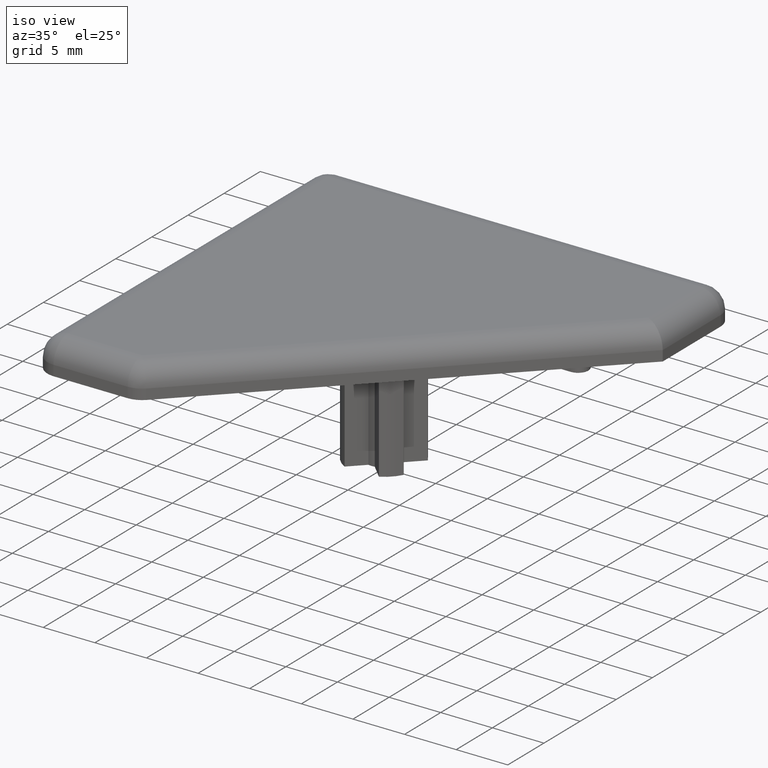
[diagram: clean part render]
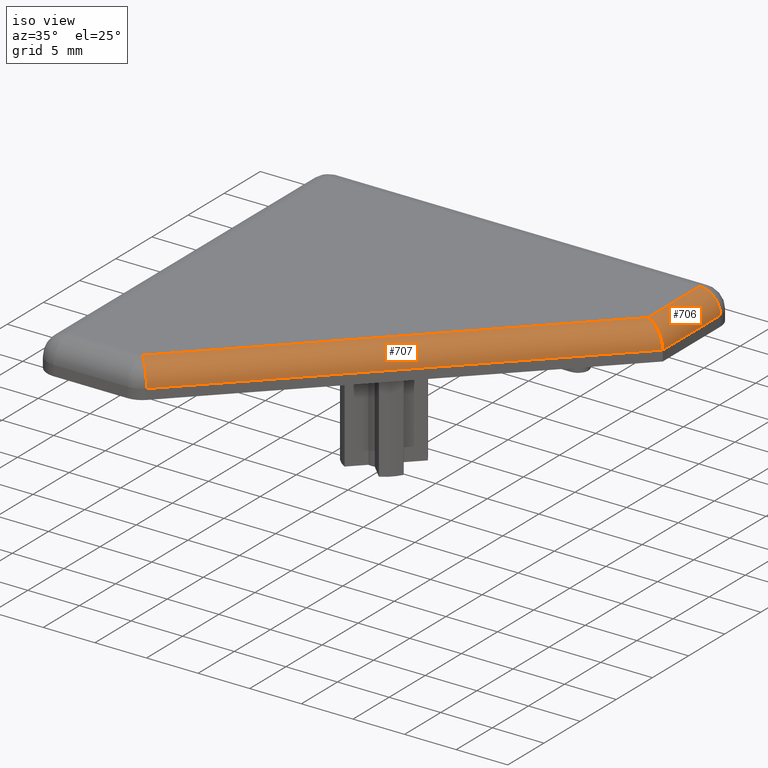
[diagram: same view with one multi-face feature highlighted, each face labeled with its STEP entity id]
A machine part, iso view. The highlighted faces form ONE feature: a constant-radius fillet chain: 2 tangent blend faces with common blend radius 2 mm. The faces share edges in the B-rep.
Their STEP definitions:
[1] entity #707 (Cylinder):
#16=ELLIPSE($,#788,2.16478440058479,2.);
#73=FACE_OUTER_BOUND($,#114,.T.);
#114=EDGE_LOOP($,(#593,#594,#595,#596));
#179=LINE($,#1210,#243);
#180=LINE($,#1211,#244);
#243=VECTOR($,#996,40.7695526217005);
#244=VECTOR($,#997,41.5979797464467);
#279=CIRCLE($,#770,2.);
#335=VERTEX_POINT($,#1160);
#336=VERTEX_POINT($,#1162);
#349=VERTEX_POINT($,#1204);
#350=VERTEX_POINT($,#1206);
#420=EDGE_CURVE($,#335,#336,#279,.F.);
#442=EDGE_CURVE($,#350,#349,#16,.T.);
#443=EDGE_CURVE($,#350,#335,#179,.T.);
#444=EDGE_CURVE($,#336,#349,#180,.T.);
#593=ORIENTED_EDGE($,*,*,#443,.T.);
#594=ORIENTED_EDGE($,*,*,#420,.T.);
#595=ORIENTED_EDGE($,*,*,#444,.T.);
#596=ORIENTED_EDGE($,*,*,#442,.F.);
#672=CYLINDRICAL_SURFACE($,#789,2.);
#707=ADVANCED_FACE($,(#73),#672,.T.);
#770=AXIS2_PLACEMENT_3D($,#1164,#944,#945);
#788=AXIS2_PLACEMENT_3D($,#1208,#992,#993);
#789=AXIS2_PLACEMENT_3D($,#1209,#994,#995);
#944=DIRECTION('center_axis',(-0.707106781186548,-0.707106781186547,0.));
#945=DIRECTION('ref_axis',(0.,0.,1.));
#992=DIRECTION('center_axis',(0.382683432365091,0.923879532511286,1.53856849346093E-015));
#993=DIRECTION('ref_axis',(0.923879532511286,-0.382683432365091,3.71443292355331E-015));
#994=DIRECTION('center_axis',(0.707106781186548,0.707106781186548,0.));
#995=DIRECTION('ref_axis',(0.5,-0.500000000000001,0.707106781186547));
#996=DIRECTION($,(-0.707106781186547,-0.707106781186547,0.));
#997=DIRECTION($,(0.707106781186548,0.707106781186548,0.));
#1160=CARTESIAN_POINT('',(9.17157287525381,-38.,3.));
#1162=CARTESIAN_POINT('',(10.5857864376269,-39.4142135623731,1.));
#1164=CARTESIAN_POINT('Origin',(9.1715728752538,-38.,1.));
#1204=CARTESIAN_POINT('',(40.,-10.,1.));
#1206=CARTESIAN_POINT('',(38.,-9.1715728752538,3.));
#1208=CARTESIAN_POINT('Origin',(38.,-9.1715728752538,1.));
#1209=CARTESIAN_POINT('Origin',(16.0857864376269,-31.0857864376269,1.));
#1210=CARTESIAN_POINT($,(16.0857864376269,-31.0857864376269,3.));
#1211=CARTESIAN_POINT($,(17.5,-32.5,1.));
[2] entity #706 (Cylinder):
#16=ELLIPSE($,#788,2.16478440058479,2.);
#72=FACE_OUTER_BOUND($,#113,.T.);
#113=EDGE_LOOP($,(#589,#590,#591,#592));
#177=LINE($,#1205,#241);
#178=LINE($,#1207,#242);
#241=VECTOR($,#990,8.);
#242=VECTOR($,#991,7.1715728752538);
#285=CIRCLE($,#781,2.);
#344=VERTEX_POINT($,#1188);
#345=VERTEX_POINT($,#1189);
#349=VERTEX_POINT($,#1204);
#350=VERTEX_POINT($,#1206);
#432=EDGE_CURVE($,#344,#345,#285,.F.);
#440=EDGE_CURVE($,#349,#344,#177,.T.);
#441=EDGE_CURVE($,#345,#350,#178,.T.);
#442=EDGE_CURVE($,#350,#349,#16,.T.);
#589=ORIENTED_EDGE($,*,*,#440,.T.);
#590=ORIENTED_EDGE($,*,*,#432,.T.);
#591=ORIENTED_EDGE($,*,*,#441,.T.);
#592=ORIENTED_EDGE($,*,*,#442,.T.);
#671=CYLINDRICAL_SURFACE($,#787,2.);
#706=ADVANCED_FACE($,(#72),#671,.T.);
#781=AXIS2_PLACEMENT_3D($,#1190,#972,#973);
#787=AXIS2_PLACEMENT_3D($,#1203,#988,#989);
#788=AXIS2_PLACEMENT_3D($,#1208,#992,#993);
#972=DIRECTION('center_axis',(0.,1.,0.));
#973=DIRECTION('ref_axis',(1.,0.,0.));
#988=DIRECTION('center_axis',(0.,1.,0.));
#989=DIRECTION('ref_axis',(0.707106781186548,0.,0.707106781186547));
#990=DIRECTION($,(0.,1.,0.));
#991=DIRECTION($,(0.,-1.,0.));
#992=DIRECTION('center_axis',(0.382683432365091,0.923879532511286,1.53856849346093E-015));
#993=DIRECTION('ref_axis',(0.923879532511286,-0.382683432365091,3.71443292355331E-015));
#1188=CARTESIAN_POINT('',(40.,-2.,1.));
#1189=CARTESIAN_POINT('',(38.,-2.,3.));
#1190=CARTESIAN_POINT('Origin',(38.,-2.,1.));
#1203=CARTESIAN_POINT('Origin',(38.,-13.1117688164019,1.));
#1204=CARTESIAN_POINT('',(40.,-10.,1.));
#1205=CARTESIAN_POINT($,(40.,-13.1117688164019,1.));
#1206=CARTESIAN_POINT('',(38.,-9.1715728752538,3.));
#1207=CARTESIAN_POINT($,(38.,-13.1117688164019,3.));
#1208=CARTESIAN_POINT('Origin',(38.,-9.1715728752538,1.));